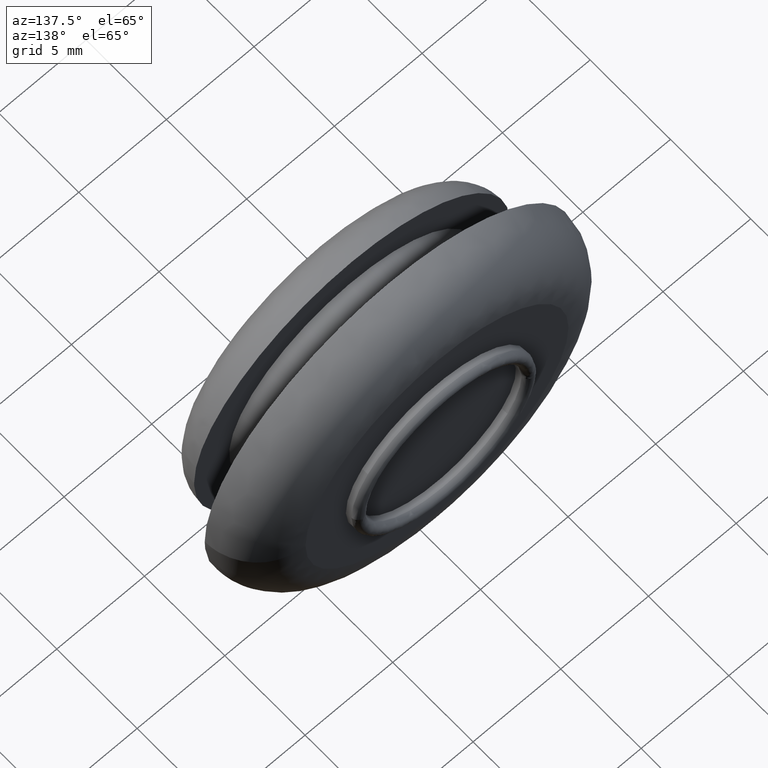
[diagram: clean part render]
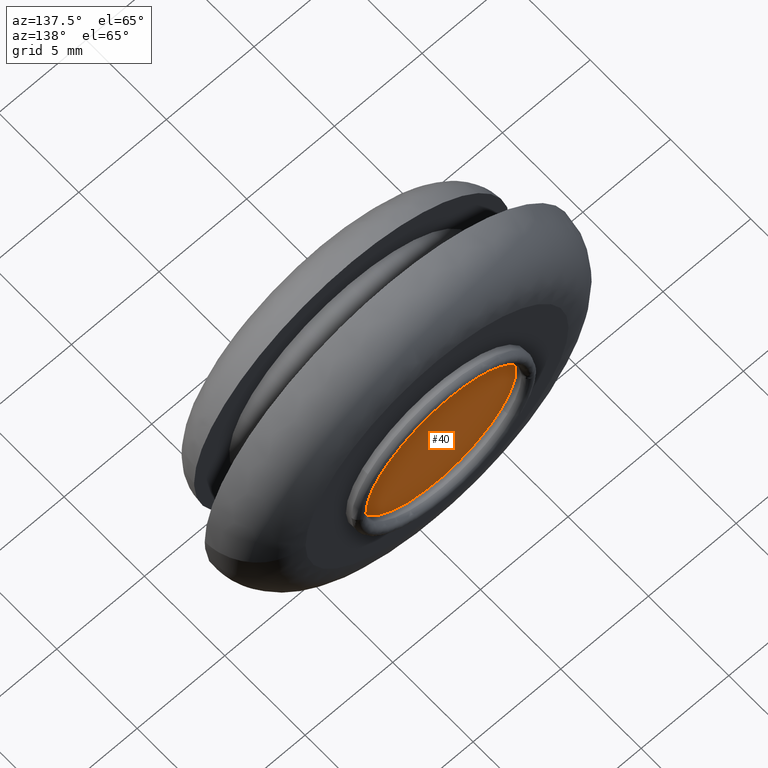
[diagram: same view with one face highlighted and labeled with its STEP entity id]
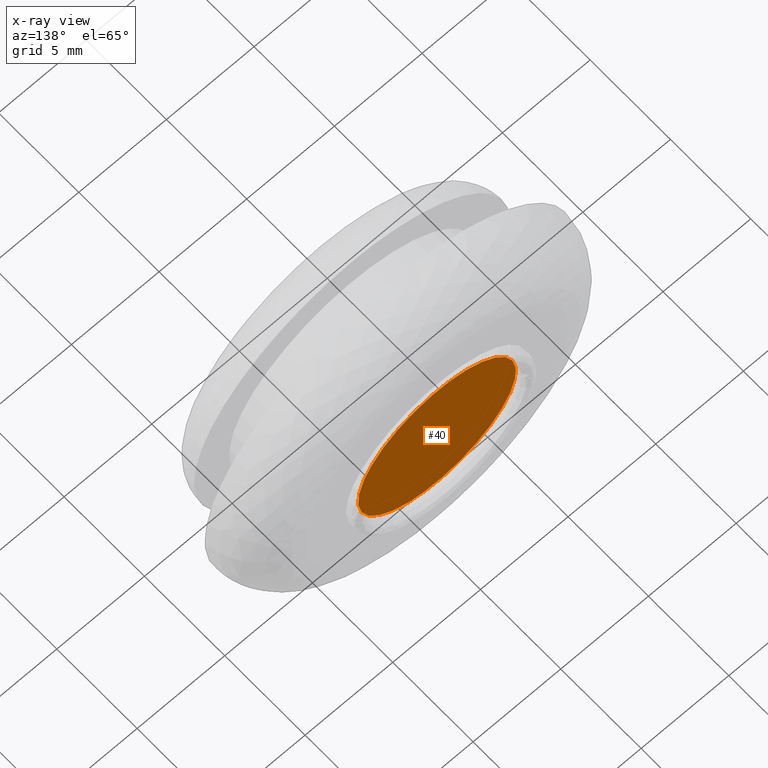
[diagram: x-ray of the same camera — body ghosted, the highlighted face saturated]
A machine part, auxiliary view. The second image highlights one B-rep face of the part: STEP entity #40.
The next image is the same camera in x-ray: the body ghosted, the highlighted face saturated — about 0% of this face is hidden behind the body in this view.
In plain terms, the highlighted planar face has unit normal (0, 1, 0).
Its self-contained STEP definition (entity closure, byte-faithful):
#40=ADVANCED_FACE('',(#61),#60,.T.);
#60=PLANE('',#267);
#61=FACE_OUTER_BOUND('',#268,.T.);
#264=CARTESIAN_POINT('',(-1.03792472719E+001,7.30000000000E+000,-9.67730201862E+000));
#265=DIRECTION('',(0.00000000000E+000,1.00000000000E+000,0.00000000000E+000));
#266=DIRECTION('',(0.00000000000E+000,0.00000000000E+000,1.00000000000E+000));
#267=AXIS2_PLACEMENT_3D('',#264,#265,#266);
#268=EDGE_LOOP('',(#494,#495,#496));
#494=ORIENTED_EDGE('',*,*,#626,.F.);
#495=ORIENTED_EDGE('',*,*,#627,.F.);
#496=ORIENTED_EDGE('',*,*,#628,.F.);
#626=EDGE_CURVE('',#692,#693,#694,.T.);
#627=EDGE_CURVE('',#700,#692,#701,.T.);
#628=EDGE_CURVE('',#693,#700,#707,.T.);
#692=VERTEX_POINT('',#1140);
#693=VERTEX_POINT('',#1141);
#694=CIRCLE('',#1145,4.50000000000E+000);
#700=VERTEX_POINT('',#1146);
#701=CIRCLE('',#1150,4.50000000000E+000);
#707=CIRCLE('',#1154,4.50000000000E+000);
#1140=CARTESIAN_POINT('',(-3.69477522654E+000,7.30000000000E+000,-2.56878103881E+000));
#1141=CARTESIAN_POINT('',(4.48612855376E+000,7.30000000000E+000,-3.53058917340E-001));
#1142=CARTESIAN_POINT('',(2.04281036531E-014,7.30000000000E+000,4.80504525058E-013));
#1143=DIRECTION('',(-5.88469851645E-016,-1.00000000000E+000,-5.36616381158E-016));
#1144=DIRECTION('',(9.96917456392E-001,-5.44554267985E-016,-7.84575371867E-002));
#1145=AXIS2_PLACEMENT_3D('',#1142,#1143,#1144);
#1146=CARTESIAN_POINT('',(3.69425604768E+000,7.30000000000E+000,2.56952763249E+000));
#1147=CARTESIAN_POINT('',(2.04281036531E-014,7.30000000000E+000,4.80504525058E-013));
#1148=DIRECTION('',(-5.88469851645E-016,-1.00000000000E+000,-5.36616381158E-016));
#1149=DIRECTION('',(9.96917456392E-001,-5.44554267985E-016,-7.84575371867E-002));
#1150=AXIS2_PLACEMENT_3D('',#1147,#1148,#1149);
#1151=CARTESIAN_POINT('',(2.04281036531E-014,7.30000000000E+000,4.80504525058E-013));
#1152=DIRECTION('',(-5.88469851645E-016,-1.00000000000E+000,-5.36616381158E-016));
#1153=DIRECTION('',(9.96917456392E-001,-5.44554267985E-016,-7.84575371867E-002));
#1154=AXIS2_PLACEMENT_3D('',#1151,#1152,#1153);